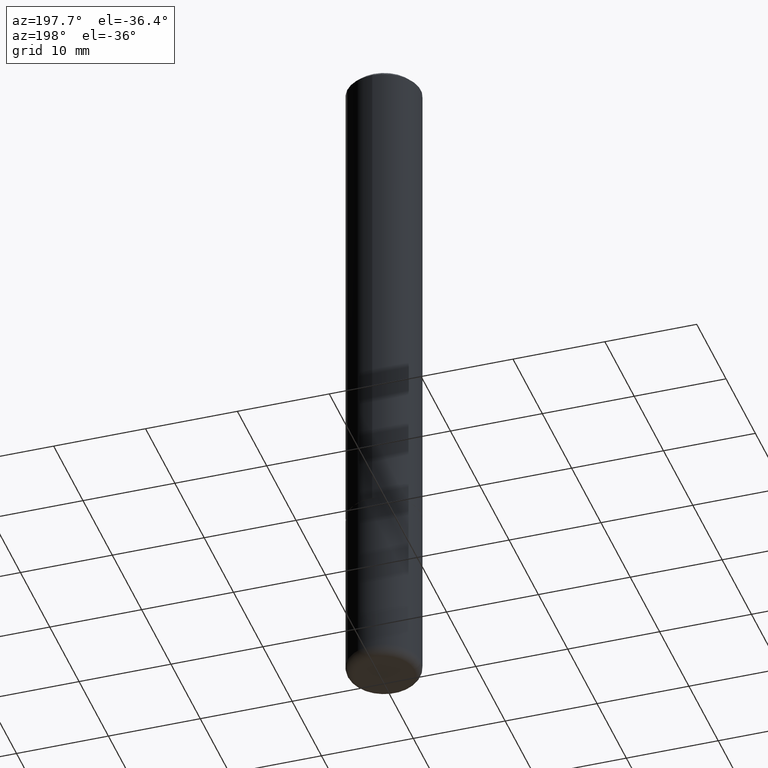
[diagram: clean part render]
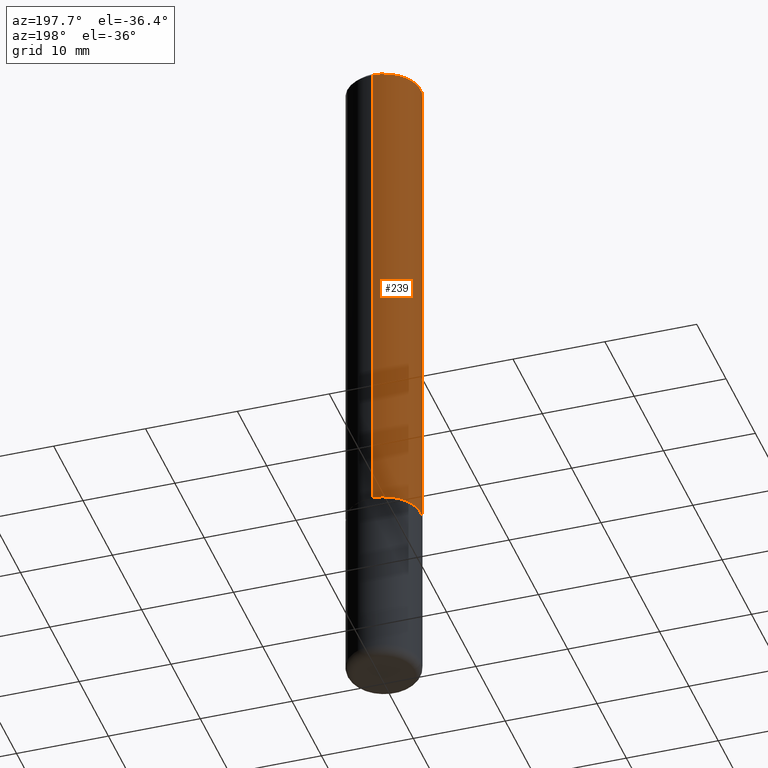
[diagram: same view with one face highlighted and labeled with its STEP entity id]
A machine part, auxiliary view. The second image highlights one B-rep face of the part: STEP entity #239.
In plain terms, the highlighted cylindrical surface (partial cylindrical patch) has radius 4.0005 mm, axis along (-0, 0, 1).
Its self-contained STEP definition (entity closure, byte-faithful):
#2 = AXIS2_PLACEMENT_3D ( 'NONE', #182, #184, #248 ) ;
#3 = VERTEX_POINT ( 'NONE', #255 ) ;
#46 = AXIS2_PLACEMENT_3D ( 'NONE', #141, #207, #79 ) ;
#49 = EDGE_CURVE ( 'NONE', #100, #3, #405, .T. ) ;
#70 = DIRECTION ( 'NONE',  ( -2.444928043019069804E-29, 3.492255742475281487E-15, 1.000000000000000000 ) ) ;
#72 = DIRECTION ( 'NONE',  ( -6.982962677686264344E-15, -1.000000000000000000, 3.496114991891764787E-15 ) ) ;
#73 = ORIENTED_EDGE ( 'NONE', *, *, #410, .F. ) ;
#79 = DIRECTION ( 'NONE',  ( -6.982962677686265133E-15, -1.000000000000000000, 3.469013325287946588E-15 ) ) ;
#91 = DIRECTION ( 'NONE',  ( -2.444928043019069524E-29, 3.492255742475281487E-15, 1.000000000000000000 ) ) ;
#100 = VERTEX_POINT ( 'NONE', #330 ) ;
#105 = CARTESIAN_POINT ( 'NONE',  ( 4.889856086038147210E-31, -6.984511484950574659E-17, -0.02000000000000003511 ) ) ;
#133 = VERTEX_POINT ( 'NONE', #336 ) ;
#140 = VERTEX_POINT ( 'NONE', #183 ) ;
#141 = CARTESIAN_POINT ( 'NONE',  ( 5.291802256310474180E-29, -7.558638329013498276E-15, -2.164399999999999658 ) ) ;
#149 = CYLINDRICAL_SURFACE ( 'NONE', #2, 0.1575000000000001676 ) ;
#163 = VECTOR ( 'NONE', #91, 39.37007874015748143 ) ;
#182 = CARTESIAN_POINT ( 'NONE',  ( 0.000000000000000000, 0.000000000000000000, 0.000000000000000000 ) ) ;
#183 = CARTESIAN_POINT ( 'NONE',  ( 1.099816621735587480E-15, 0.1574999999999999456, -0.02000000000000058328 ) ) ;
#184 = DIRECTION ( 'NONE',  ( -2.444928043019069804E-29, 3.492255742475281487E-15, 1.000000000000000000 ) ) ;
#189 = EDGE_CURVE ( 'NONE', #100, #140, #215, .T. ) ;
#190 = CARTESIAN_POINT ( 'NONE',  ( -1.099816621735587875E-15, -0.1575000000000001676, 5.500302794398574170E-16 ) ) ;
#197 = ORIENTED_EDGE ( 'NONE', *, *, #49, .T. ) ;
#207 = DIRECTION ( 'NONE',  ( -2.444928043019069804E-29, 3.492255742475281487E-15, 1.000000000000000000 ) ) ;
#215 = LINE ( 'NONE', #296, #258 ) ;
#228 = CIRCLE ( 'NONE', #312, 0.1575000000000000289 ) ;
#235 = DIRECTION ( 'NONE',  ( -2.444928043019069524E-29, 3.492255742475281487E-15, 1.000000000000000000 ) ) ;
#239 = ADVANCED_FACE ( 'NONE', ( #370 ), #149, .T. ) ;
#248 = DIRECTION ( 'NONE',  ( -6.982962677686265133E-15, -1.000000000000000000, 3.492255742475281487E-15 ) ) ;
#255 = CARTESIAN_POINT ( 'NONE',  ( -1.099816621735536007E-15, -0.1575000000000078559, -2.164399999999999213 ) ) ;
#258 = VECTOR ( 'NONE', #235, 39.37007874015748143 ) ;
#296 = CARTESIAN_POINT ( 'NONE',  ( 1.119104808822158787E-15, 0.1575000000000001676, -5.500302794398574170E-16 ) ) ;
#312 = AXIS2_PLACEMENT_3D ( 'NONE', #105, #70, #72 ) ;
#328 = ORIENTED_EDGE ( 'NONE', *, *, #189, .F. ) ;
#330 = CARTESIAN_POINT ( 'NONE',  ( 1.119104808822185805E-15, 0.1574999999999927569, -2.164400000000000102 ) ) ;
#336 = CARTESIAN_POINT ( 'NONE',  ( -1.080528434649015779E-15, -0.1575000000000000844, -0.01999999999999948347 ) ) ;
#352 = EDGE_CURVE ( 'NONE', #3, #133, #372, .T. ) ;
#354 = ORIENTED_EDGE ( 'NONE', *, *, #352, .T. ) ;
#370 = FACE_OUTER_BOUND ( 'NONE', #382, .T. ) ;
#372 = LINE ( 'NONE', #190, #163 ) ;
#382 = EDGE_LOOP ( 'NONE', ( #328, #197, #354, #73 ) ) ;
#405 = CIRCLE ( 'NONE', #46, 0.1575000000000003064 ) ;
#410 = EDGE_CURVE ( 'NONE', #140, #133, #228, .T. ) ;